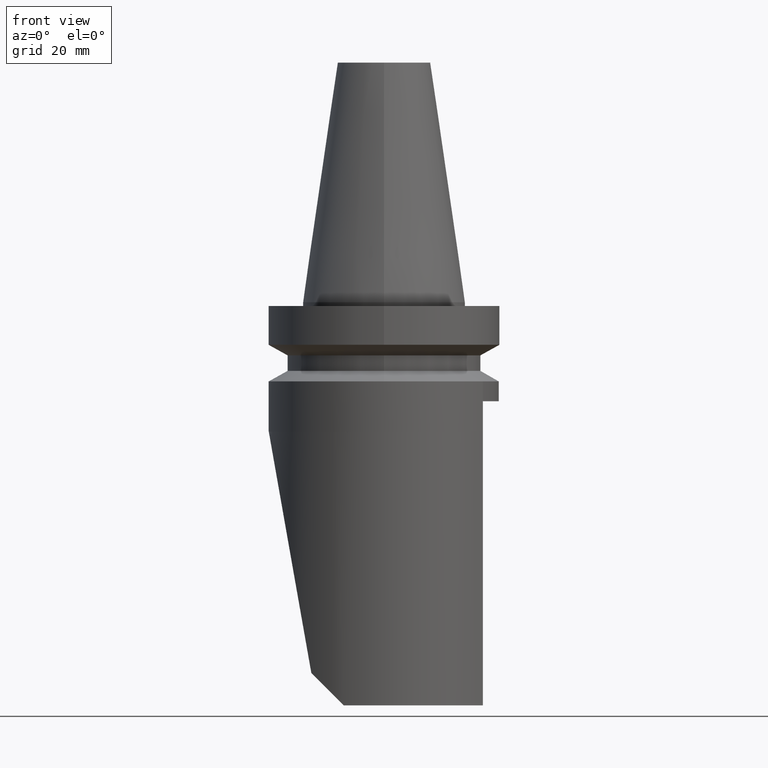
[diagram: clean part render]
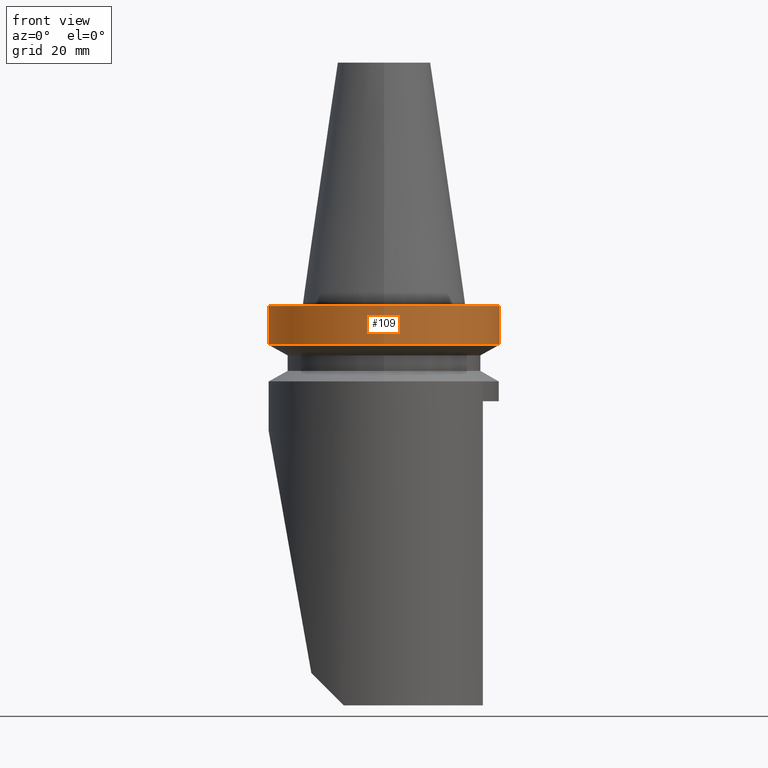
[diagram: same view with one face highlighted and labeled with its STEP entity id]
A machine part, front view. The second image highlights one B-rep face of the part: STEP entity #109.
In plain terms, the highlighted cylindrical surface (bore or boss wall) has radius 31.5 mm, axis along (-0, 0, 1).
Its self-contained STEP definition (entity closure, byte-faithful):
#109=ADVANCED_FACE('Unnamed[1]',(#304,#305),#306,.T.);
#154=EDGE_CURVE('Unnamed[1]',#370,#370,#371,.T.);
#213=EDGE_CURVE('Unnamed[1]',#450,#450,#451,.T.);
#304=FACE_BOUND('',#555,.T.);
#305=FACE_BOUND('',#556,.T.);
#306=CYLINDRICAL_SURFACE('',#557,31.5000000000001);
#370=VERTEX_POINT('',#664);
#371=CIRCLE('',#665,31.5000000000001);
#450=VERTEX_POINT('',#889);
#451=CIRCLE('',#890,31.5000000000001);
#555=EDGE_LOOP('',(#1023));
#556=EDGE_LOOP('',(#1024));
#557=AXIS2_PLACEMENT_3D('',#1025,#1026,#1027);
#664=CARTESIAN_POINT('',(6.12323399573598E-017,-31.5000000000001,-0.99999999999987));
#665=AXIS2_PLACEMENT_3D('',#1091,#1092,#1093);
#889=CARTESIAN_POINT('',(7.10295143505457E-016,-31.5000000000001,-11.5999999999999));
#890=AXIS2_PLACEMENT_3D('',#1188,#1189,#1190);
#1023=ORIENTED_EDGE('',*,*,#213,.F.);
#1024=ORIENTED_EDGE('',*,*,#154,.T.);
#1025=CARTESIAN_POINT('',(3.85763741731409E-016,5.63421504051594E-015,-6.29999999999988));
#1026=DIRECTION('',(-6.12323399573677E-017,2.0159339262104E-016,1.0));
#1027=DIRECTION('',(-7.51688241936162E-033,-1.0,2.0159339262104E-016));
#1091=CARTESIAN_POINT('',(6.12323399573607E-017,6.70266002140745E-015,-0.999999999999886));
#1092=DIRECTION('',(6.12323399573677E-017,-2.0159339262104E-016,-1.0));
#1093=DIRECTION('',(-7.51688241936162E-033,-1.0,2.0159339262104E-016));
#1188=CARTESIAN_POINT('',(7.10295143505458E-016,4.56577005962442E-015,-11.5999999999999));
#1189=DIRECTION('',(6.12323399573676E-017,-2.0159339262104E-016,-1.0));
#1190=DIRECTION('',(-7.51688241936162E-033,-1.0,2.0159339262104E-016));